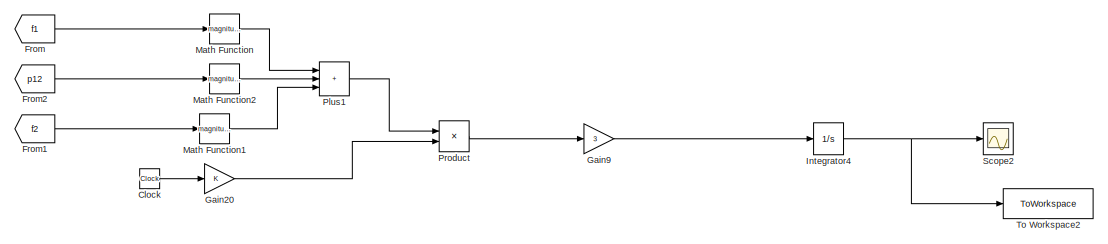
[diagram: root canvas - part 1/7, top right region]
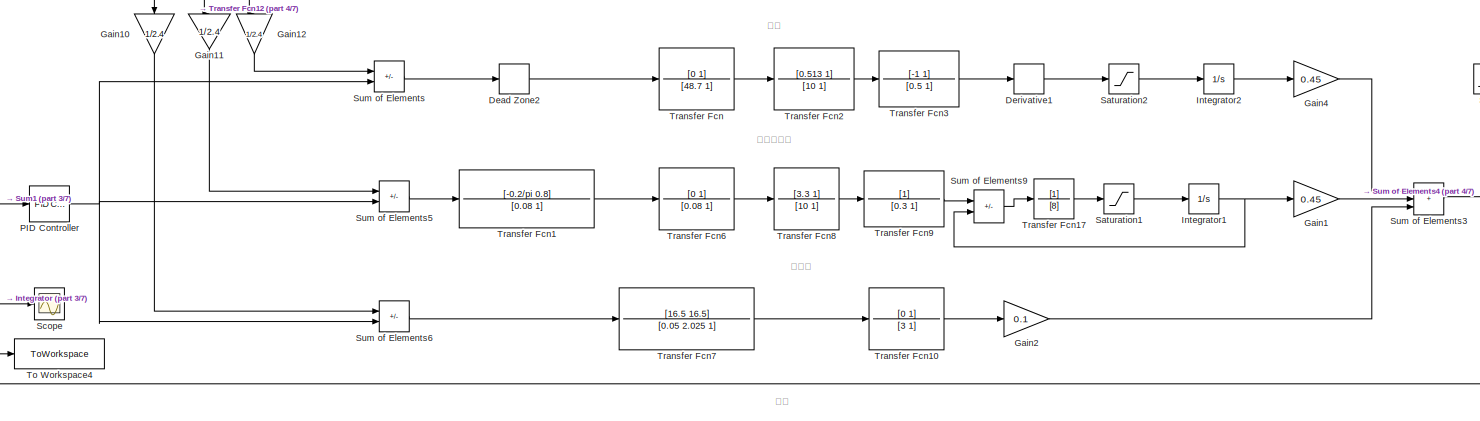
[diagram: root canvas - part 2/7, central region]
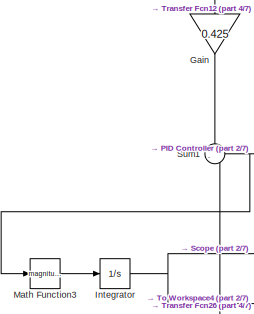
[diagram: root canvas - part 3/7, middle left region]
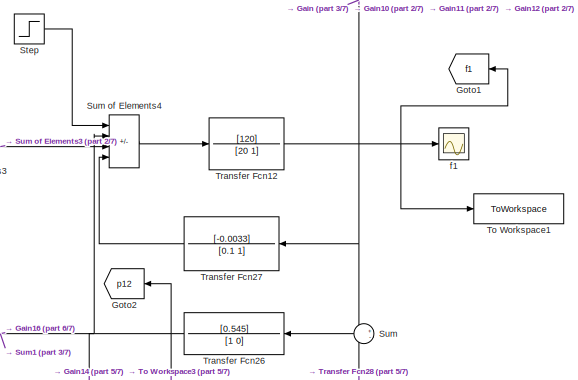
[diagram: root canvas - part 4/7, middle right region]
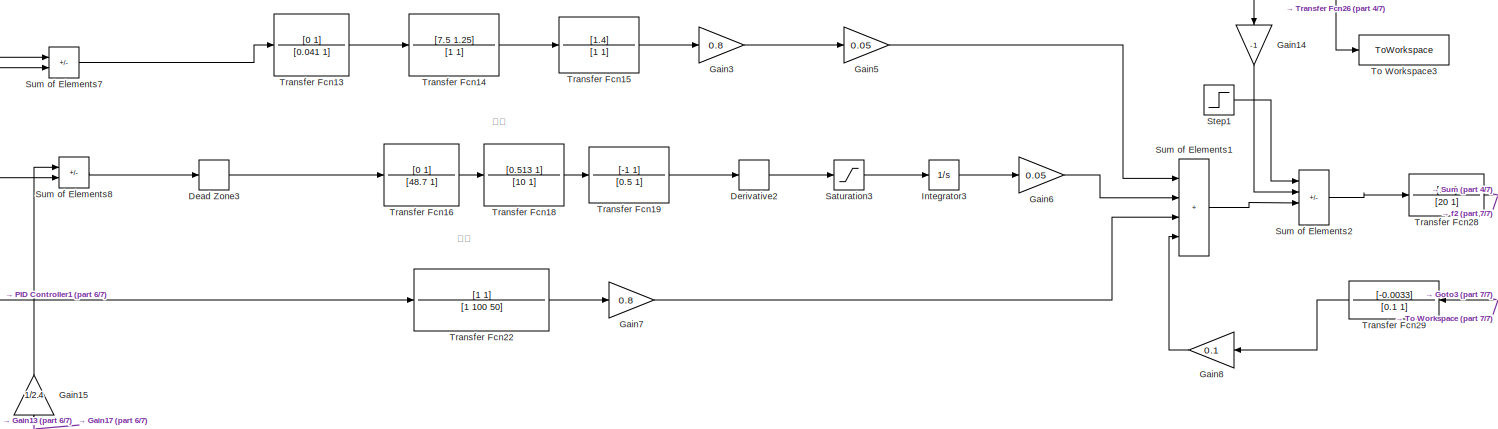
[diagram: root canvas - part 5/7, bottom center region]
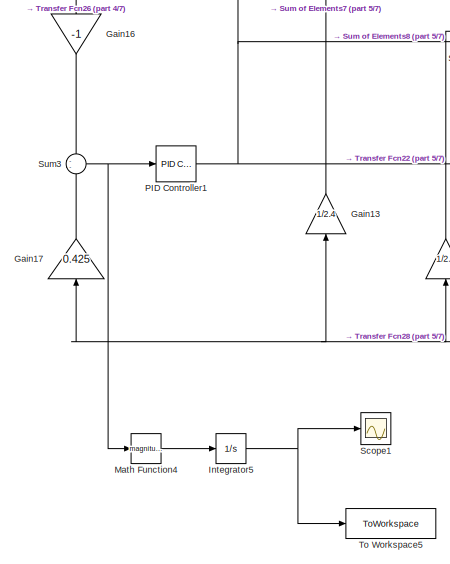
[diagram: root canvas - part 6/7, bottom left region]
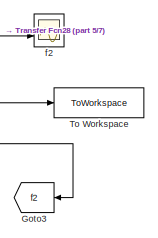
[diagram: root canvas - part 7/7, bottom right region]
MODEL slx_899091efea0a
KIND model
CONFIG AbsTol = auto
CONFIG EnableMultiTasking = off
CONFIG FixedStep = auto
CONFIG MaxStep = auto
CONFIG MinStep = auto
CONFIG RelTol = 1e-3
CONFIG SampleTimeConstraint = Unconstrained
CONFIG SolverName = ode45
CONFIG StartTime = 0.0
CONFIG StopTime = 100.0
BLOCK [Clock] Clock
BLOCK [DeadZone] Dead Zone2
  LowerValue = -0.0002
  UpperValue = 0.0002
BLOCK [DeadZone] Dead Zone3
  LowerValue = -0.0002
  UpperValue = 0.0002
BLOCK [Derivative] Derivative1
BLOCK [Derivative] Derivative2
BLOCK [From] From
  GotoTag = f1
  IconDisplay = Tag and signal name
BLOCK [From] From1
  GotoTag = f2
  IconDisplay = Tag and signal name
BLOCK [From] From2
  GotoTag = p12
  IconDisplay = Tag and signal name
BLOCK [Gain] Gain
  Gain = 0.425
  NameLocation = left
BLOCK [Gain] Gain1
  Gain = 0.45
BLOCK [Gain] Gain10
  Gain = 1/2.4
  NameLocation = left
BLOCK [Gain] Gain11
  Gain = 1/2.4
  NameLocation = left
BLOCK [Gain] Gain12
  Gain = 1/2.4
  NameLocation = top
BLOCK [Gain] Gain13
  Gain = 1/2.4
  NameLocation = right
BLOCK [Gain] Gain14
  Gain = -1
  NameLocation = right
BLOCK [Gain] Gain15
  Gain = 1/2.4
  NameLocation = right
BLOCK [Gain] Gain16
  Gain = -1
  NameLocation = left
BLOCK [Gain] Gain17
  Gain = 0.425
  NameLocation = right
BLOCK [Gain] Gain2
  Gain = 0.1
BLOCK [Gain] Gain20
BLOCK [Gain] Gain3
  Gain = 0.8
BLOCK [Gain] Gain4
  Gain = 0.45
BLOCK [Gain] Gain5
  Gain = 0.05
BLOCK [Gain] Gain6
  Gain = 0.05
BLOCK [Gain] Gain7
  Gain = 0.8
BLOCK [Gain] Gain8
  Gain = 0.1
BLOCK [Gain] Gain9
  Gain = 3
BLOCK [Goto] Goto1
  GotoTag = f1
  IconDisplay = Tag and signal name
  NameLocation = top
  Tag = f1
BLOCK [Goto] Goto2
  GotoTag = p12
  IconDisplay = Tag and signal name
  NameLocation = top
  Tag = f1
BLOCK [Goto] Goto3
  GotoTag = f2
  IconDisplay = Tag and signal name
  NameLocation = top
  Tag = f2
BLOCK [Integrator] Integrator
BLOCK [Integrator] Integrator1
BLOCK [Integrator] Integrator2
BLOCK [Integrator] Integrator3
BLOCK [Integrator] Integrator4
BLOCK [Integrator] Integrator5
BLOCK [Math] Math Function
  Operator = magnitude^2
BLOCK [Math] Math Function1
  Operator = magnitude^2
BLOCK [Math] Math Function2
  Operator = magnitude^2
BLOCK [Math] Math Function3
  Operator = magnitude^2
BLOCK [Math] Math Function4
  Operator = magnitude^2
BLOCK [Reference] PID Controller  REF=slpidlib/PID Controller
  LibrarySourceBlock = simulink/Continuous/PID Controller
  SourceBlock = slpidlib/PID Controller
  SourceType = PID 1dof
BLOCK [Reference] PID Controller1  REF=slpidlib/PID Controller
  LibrarySourceBlock = simulink/Continuous/PID Controller
  SourceBlock = slpidlib/PID Controller
  SourceType = PID 1dof
BLOCK [Sum] Plus1
  IconShape = rectangular
  Inputs = +++
BLOCK [Product] Product
BLOCK [Saturate] Saturation1
BLOCK [Saturate] Saturation2
  LowerLimit = -2.7
  UpperLimit = 3.6
BLOCK [Saturate] Saturation3
  LowerLimit = -2.7
  UpperLimit = 3.6
BLOCK [Scope] Scope
  Floating = off
  NumInputPorts = 1
  ScopeSpecificationString = Simulink.scopes.TimeScopeBlockCfg('CurrentConfiguration', extmgr.ConfigurationSet(extmgr.Configuration('Core','General UI',true),extmgr.Configuration('Core','Source UI',true),extmgr.Configuration('Sources','WiredSimulink',true,'DataLoggingVariableName','ScopeData1'),extmgr.Configuration('Visuals','Time Domain',true,'SerializedDisplays',{struct('MinYLimReal','-2.00816','MaxYLimReal','18.07342','YLa...<+1373ch>
BLOCK [Scope] Scope1
  Floating = off
  NumInputPorts = 1
  ScopeSpecificationString = Simulink.scopes.TimeScopeBlockCfg('CurrentConfiguration', extmgr.ConfigurationSet(extmgr.Configuration('Core','General UI',true),extmgr.Configuration('Core','Source UI',true),extmgr.Configuration('Sources','WiredSimulink',true,'DataLoggingVariableName','ScopeData2'),extmgr.Configuration('Visuals','Time Domain',true,'SerializedDisplays',{struct('MinYLimReal','-1.51924','MaxYLimReal','13.67313','YLa...<+1374ch>
BLOCK [Scope] Scope2
  Floating = off
  NumInputPorts = 1
  ScopeSpecificationString = Simulink.scopes.TimeScopeBlockCfg('CurrentConfiguration', extmgr.ConfigurationSet(extmgr.Configuration('Core','General UI',true),extmgr.Configuration('Core','Source UI',true),extmgr.Configuration('Sources','WiredSimulink',true,'DataLoggingVariableName','ScopeData1'),extmgr.Configuration('Visuals','Time Domain',true,'SerializedDisplays',{struct('MinYLimReal','-1.25','MaxYLimReal','11.25','YLabelRea...<+1787ch>
BLOCK [Step] Step
  After = 0.05
  SampleTime = 0
  Time = 0.01
BLOCK [Step] Step1
  After = 0.05
  SampleTime = 0
  Time = 0.01
BLOCK [Sum] Sum
  Inputs = +-
  NameLocation = top
BLOCK [Sum] Sum of Elements
  IconShape = rectangular
  Inputs = -+
BLOCK [Sum] Sum of Elements1
  IconShape = rectangular
  Inputs = ++++
BLOCK [Sum] Sum of Elements2
  IconShape = rectangular
  Inputs = --+-
BLOCK [Sum] Sum of Elements3
  IconShape = rectangular
  Inputs = +++
BLOCK [Sum] Sum of Elements4
  IconShape = rectangular
  Inputs = --+-
BLOCK [Sum] Sum of Elements5
  IconShape = rectangular
  Inputs = -+
BLOCK [Sum] Sum of Elements6
  IconShape = rectangular
  Inputs = -+
BLOCK [Sum] Sum of Elements7
  IconShape = rectangular
  Inputs = -+
BLOCK [Sum] Sum of Elements8
  IconShape = rectangular
  Inputs = -+
BLOCK [Sum] Sum of Elements9
  IconShape = rectangular
  Inputs = +-
BLOCK [Sum] Sum1
  Inputs = --
BLOCK [Sum] Sum3
  Inputs = --
  NameLocation = top
BLOCK [ToWorkspace] To Workspace
  FixptAsFi = on
  MaxDataPoints = inf
  SampleTime = -1
  VariableName = f2
BLOCK [ToWorkspace] To Workspace1
  FixptAsFi = on
  MaxDataPoints = inf
  SampleTime = -1
  VariableName = f1
BLOCK [ToWorkspace] To Workspace2
  FixptAsFi = on
  MaxDataPoints = inf
  SampleTime = -1
  VariableName = ITAE
BLOCK [ToWorkspace] To Workspace3
  FixptAsFi = on
  MaxDataPoints = inf
  SampleTime = -1
  SaveFormat = Timeseries
  VariableName = p12
BLOCK [ToWorkspace] To Workspace4
  FixptAsFi = on
  MaxDataPoints = inf
  SampleTime = -1
  VariableName = ACE1
BLOCK [ToWorkspace] To Workspace5
  FixptAsFi = on
  MaxDataPoints = inf
  SampleTime = -1
  VariableName = ACE2
BLOCK [TransferFcn] Transfer Fcn
  Denominator = [48.7 1]
  Numerator = [0 1]
BLOCK [TransferFcn] Transfer Fcn1
  Denominator = [0.08 1]
  Numerator = [-0.2/pi 0.8]
BLOCK [TransferFcn] Transfer Fcn10
  Denominator = [3 1]
  Numerator = [0 1]
BLOCK [TransferFcn] Transfer Fcn12
  Denominator = [20 1]
  Numerator = [120]
BLOCK [TransferFcn] Transfer Fcn13
  Denominator = [0.041 1]
  Numerator = [0 1]
BLOCK [TransferFcn] Transfer Fcn14
  Denominator = [1 1]
  Numerator = [7.5 1.25]
BLOCK [TransferFcn] Transfer Fcn15
  Denominator = [1 1]
  Numerator = [1.4]
BLOCK [TransferFcn] Transfer Fcn16
  Denominator = [48.7 1]
  Numerator = [0 1]
BLOCK [TransferFcn] Transfer Fcn17
  Denominator = [8]
BLOCK [TransferFcn] Transfer Fcn18
  Denominator = [10 1]
  Numerator = [0.513 1]
BLOCK [TransferFcn] Transfer Fcn19
  Denominator = [0.5 1]
  Numerator = [-1 1]
BLOCK [TransferFcn] Transfer Fcn2
  Denominator = [10 1]
  Numerator = [0.513 1]
BLOCK [TransferFcn] Transfer Fcn22
  Denominator = [1 100 50]
  Numerator = [1 1]
BLOCK [TransferFcn] Transfer Fcn26
  Denominator = [1 0]
  NameLocation = top
  Numerator = [0.545]
BLOCK [TransferFcn] Transfer Fcn27
  Denominator = [0.1 1]
  NameLocation = top
  Numerator = [-0.0033]
BLOCK [TransferFcn] Transfer Fcn28
  Denominator = [20 1]
  NameLocation = top
  Numerator = [120]
BLOCK [TransferFcn] Transfer Fcn29
  Denominator = [0.1 1]
  NameLocation = top
  Numerator = [-0.0033]
BLOCK [TransferFcn] Transfer Fcn3
  Denominator = [0.5 1]
  Numerator = [-1 1]
BLOCK [TransferFcn] Transfer Fcn6
  Denominator = [0.08 1]
  Numerator = [0 1]
BLOCK [TransferFcn] Transfer Fcn7
  Denominator = [0.05 2.025 1]
  Numerator = [16.5 16.5]
BLOCK [TransferFcn] Transfer Fcn8
  Denominator = [10 1]
  Numerator = [3.3 1]
BLOCK [TransferFcn] Transfer Fcn9
  Denominator = [0.3 1]
BLOCK [Scope] f1
  Floating = off
  NumInputPorts = 1
  ScopeSpecificationString = Simulink.scopes.TimeScopeBlockCfg('CurrentConfiguration', extmgr.ConfigurationSet(extmgr.Configuration('Core','General UI',true),extmgr.Configuration('Core','Source UI',true),extmgr.Configuration('Sources','WiredSimulink',true),extmgr.Configuration('Visuals','Time Domain',true,'SerializedDisplays',{struct('MinYLimReal','-0.95398','MaxYLimReal','0.19626','YLabelReal','','MinYLimMag','0.00000','MaxY...<+1439ch>
  Tag = f1
BLOCK [Scope] f2
  Floating = off
  NumInputPorts = 2
  ScopeSpecificationString = Simulink.scopes.TimeScopeBlockCfg('CurrentConfiguration', extmgr.ConfigurationSet(extmgr.Configuration('Core','General UI',true),extmgr.Configuration('Core','Source UI',true),extmgr.Configuration('Sources','WiredSimulink',true,'DataLoggingVariableName','ScopeData1'),extmgr.Configuration('Visuals','Time Domain',true,'SerializedDisplays',{struct('MinYLimReal','-0.66908','MaxYLimReal','0.1962','YLabe...<+1486ch>
  Tag = f2
ANNOTATION (root): 柴油机
ANNOTATION (root): 光伏
ANNOTATION (root): 再热汽轮机
ANNOTATION (root): 水电
ANNOTATION (root): 风能
LINE Clock:1 -> Gain20:1
LINE Dead Zone2:1 -> Transfer Fcn:1
LINE Dead Zone3:1 -> Transfer Fcn16:1
LINE Derivative1:1 -> Saturation2:1
LINE Derivative2:1 -> Saturation3:1
LINE From1:1 -> Math Function1:1
LINE From2:1 -> Math Function2:1
LINE From:1 -> Math Function:1
LINE Gain10:1 -> Sum of Elements6:1
LINE Gain11:1 -> Sum of Elements5:1
LINE Gain12:1 -> Sum of Elements:1
LINE Gain13:1 -> Sum of Elements7:1
LINE Gain14:1 -> Sum of Elements2:2
LINE Gain15:1 -> Sum of Elements8:1
LINE Gain16:1 -> Sum3:1
LINE Gain17:1 -> Sum3:2
LINE Gain1:1 -> Sum of Elements3:2
LINE Gain20:1 -> Product:2
LINE Gain2:1 -> Sum of Elements3:3
LINE Gain3:1 -> Gain5:1
LINE Gain4:1 -> Sum of Elements3:1
LINE Gain5:1 -> Sum of Elements1:1
LINE Gain6:1 -> Sum of Elements1:2
LINE Gain7:1 -> Sum of Elements1:3
LINE Gain8:1 -> Sum of Elements1:4
LINE Gain9:1 -> Integrator4:1
LINE Gain:1 -> Sum1:1
NET Integrator1:1 -> Gain1:1, Sum of Elements9:2
LINE Integrator2:1 -> Gain4:1
LINE Integrator3:1 -> Gain6:1
NET Integrator4:1 -> Scope2:1, To Workspace2:1
NET Integrator5:1 -> Scope1:1, To Workspace5:1
NET Integrator:1 -> Scope:1, To Workspace4:1
LINE Math Function1:1 -> Plus1:3
LINE Math Function2:1 -> Plus1:2
LINE Math Function3:1 -> Integrator:1
LINE Math Function4:1 -> Integrator5:1
LINE Math Function:1 -> Plus1:1
NET PID Controller1:1 -> Sum of Elements7:2, Sum of Elements8:2, Transfer Fcn22:1
NET PID Controller:1 -> Sum of Elements5:2, Sum of Elements6:2, Sum of Elements:2
LINE Plus1:1 -> Product:1
LINE Product:1 -> Gain9:1
LINE Saturation1:1 -> Integrator1:1
LINE Saturation2:1 -> Integrator2:1
LINE Saturation3:1 -> Integrator3:1
LINE Step1:1 -> Sum of Elements2:1
LINE Step:1 -> Sum of Elements4:1
LINE Sum of Elements1:1 -> Sum of Elements2:3
LINE Sum of Elements2:1 -> Transfer Fcn28:1
LINE Sum of Elements3:1 -> Sum of Elements4:3
LINE Sum of Elements4:1 -> Transfer Fcn12:1
LINE Sum of Elements5:1 -> Transfer Fcn1:1
LINE Sum of Elements6:1 -> Transfer Fcn7:1
LINE Sum of Elements7:1 -> Transfer Fcn13:1
LINE Sum of Elements8:1 -> Dead Zone3:1
LINE Sum of Elements9:1 -> Transfer Fcn17:1
LINE Sum of Elements:1 -> Dead Zone2:1
NET Sum1:1 -> Math Function3:1, PID Controller:1
NET Sum3:1 -> Math Function4:1, PID Controller1:1
LINE Sum:1 -> Transfer Fcn26:1
LINE Transfer Fcn10:1 -> Gain2:1
NET Transfer Fcn12:1 -> Gain10:1, Gain11:1, Gain12:1, Gain:1, Goto1:1, Sum:1, To Workspace1:1, Transfer Fcn27:1, f1:1
LINE Transfer Fcn13:1 -> Transfer Fcn14:1
LINE Transfer Fcn14:1 -> Transfer Fcn15:1
LINE Transfer Fcn15:1 -> Gain3:1
LINE Transfer Fcn16:1 -> Transfer Fcn18:1
LINE Transfer Fcn17:1 -> Saturation1:1
LINE Transfer Fcn18:1 -> Transfer Fcn19:1
LINE Transfer Fcn19:1 -> Derivative2:1
LINE Transfer Fcn1:1 -> Transfer Fcn6:1
LINE Transfer Fcn22:1 -> Gain7:1
NET Transfer Fcn26:1 -> Gain14:1, Gain16:1, Goto2:1, Sum of Elements4:2, Sum1:2, To Workspace3:1
LINE Transfer Fcn27:1 -> Sum of Elements4:4
NET Transfer Fcn28:1 -> Gain13:1, Gain15:1, Gain17:1, Goto3:1, Sum:2, To Workspace:1, Transfer Fcn29:1, f2:2
LINE Transfer Fcn29:1 -> Gain8:1
LINE Transfer Fcn2:1 -> Transfer Fcn3:1
LINE Transfer Fcn3:1 -> Derivative1:1
LINE Transfer Fcn6:1 -> Transfer Fcn8:1
LINE Transfer Fcn7:1 -> Transfer Fcn10:1
LINE Transfer Fcn8:1 -> Transfer Fcn9:1
LINE Transfer Fcn9:1 -> Sum of Elements9:1
LINE Transfer Fcn:1 -> Transfer Fcn2:1
note: NET lines group one-source signal fan-out (src -> all destinations, sorted); 1:1 wires keep LINE
